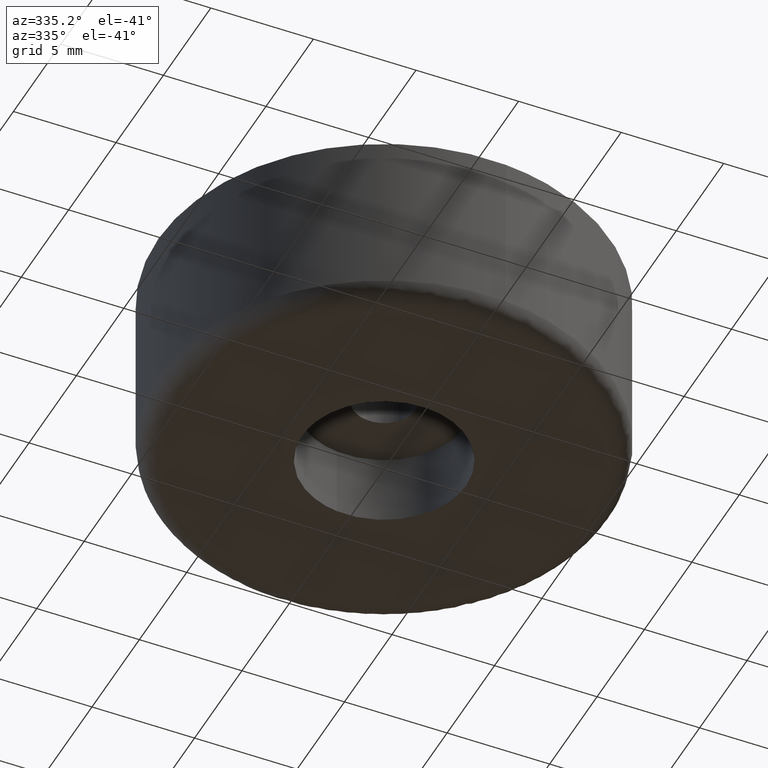
[diagram: clean part render]
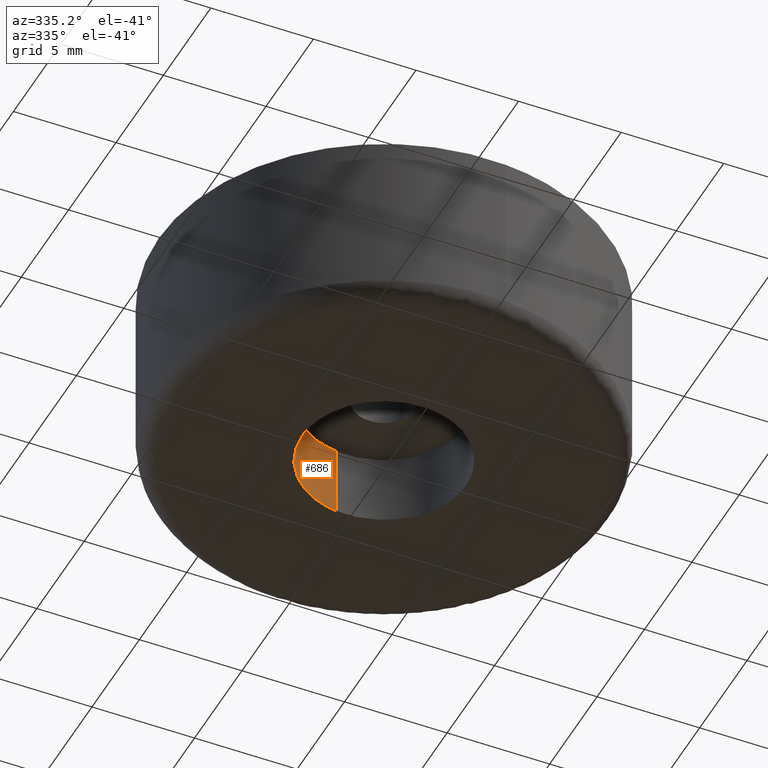
[diagram: same view with one face highlighted and labeled with its STEP entity id]
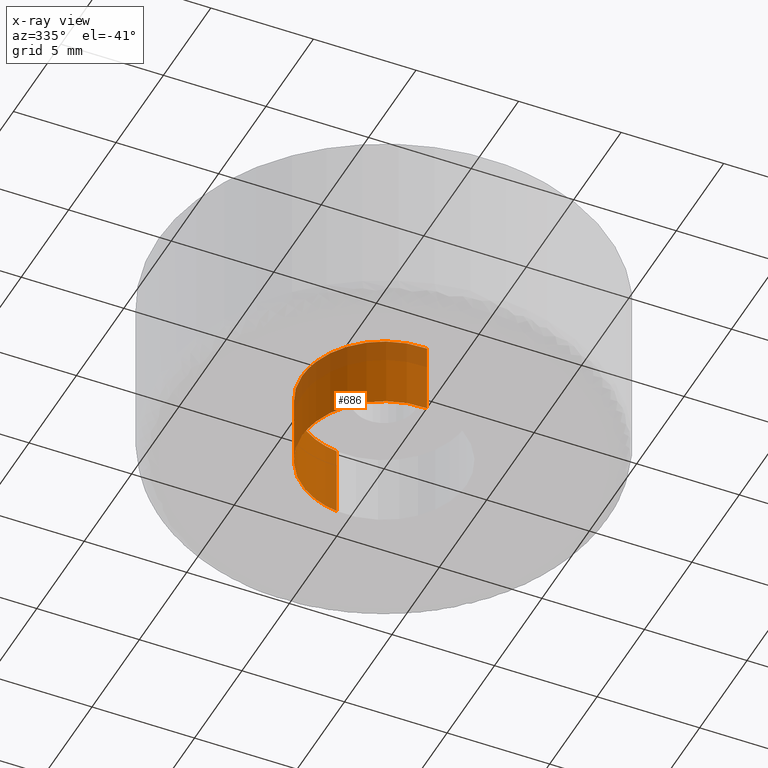
[diagram: x-ray of the same camera — body ghosted, the highlighted face saturated]
A machine part, auxiliary view. The second image highlights one B-rep face of the part: STEP entity #686.
The next image is the same camera in x-ray: the body ghosted, the highlighted face saturated — about 24% of this face is hidden behind the body in this view.
In plain terms, the highlighted face is a freeform B-spline surface patch.
Its self-contained STEP definition (entity closure, byte-faithful):
#523=CARTESIAN_POINT('',(-0.472135409144780,3.972038287256218,-7.780033E-015));
#524=VERTEX_POINT('',#523);
#542=CARTESIAN_POINT('',(0.244188269697965,-3.992539553831259,-5.921652E-014));
#543=VERTEX_POINT('',#542);
#557=CARTESIAN_POINT('',(0.244188342415201,-3.992539549383896,3.500000000000000));
#558=VERTEX_POINT('',#557);
#559=CARTESIAN_POINT('',(0.244188342415201,-3.992539549383896,3.500000000000000));
#560=CARTESIAN_POINT('',(0.244188269697965,-3.992539553831259,-5.921652E-014));
#561=QUASI_UNIFORM_CURVE('',1,(#559,#560),.UNSPECIFIED.,.F.,.U.);
#562=EDGE_CURVE('',#558,#543,#561,.T.);
#579=CARTESIAN_POINT('',(-0.472135428042880,3.972038285009908,3.500000000000000));
#580=VERTEX_POINT('',#579);
#596=CARTESIAN_POINT('',(-0.472135428042880,3.972038285009908,3.500000000000000));
#597=CARTESIAN_POINT('',(-0.472135409144780,3.972038287256218,-7.780033E-015));
#598=QUASI_UNIFORM_CURVE('',1,(#596,#597),.UNSPECIFIED.,.F.,.U.);
#599=EDGE_CURVE('',#580,#524,#598,.T.);
#604=CARTESIAN_POINT('',(0.244194158139428,-3.992539193687467,3.587500000000000));
#605=CARTESIAN_POINT('',(-3.748345035548039,-4.236733351826894,3.587500000000001));
#606=CARTESIAN_POINT('',(-3.992539193687467,-0.244194158139428,3.587500000000000));
#607=CARTESIAN_POINT('',(-4.223144786930110,3.526173963358004,3.587500000000000));
#608=CARTESIAN_POINT('',(-0.472136938627034,3.972038105454666,3.587500000000001));
#609=CARTESIAN_POINT('',(0.244194158139428,-3.992539193687467,-0.089687500000000));
#610=CARTESIAN_POINT('',(-3.748345035548039,-4.236733351826894,-0.089687500000000));
#611=CARTESIAN_POINT('',(-3.992539193687467,-0.244194158139428,-0.089687500000000));
#612=CARTESIAN_POINT('',(-4.223144786930110,3.526173963358004,-0.089687500000000));
#613=CARTESIAN_POINT('',(-0.472136938627034,3.972038105454666,-0.089687500000000));
#621=(BOUNDED_SURFACE()B_SPLINE_SURFACE(2,1,((#604,#609),(#605,#610),(#606,#611),(#607,#612),(#608,#613)),.UNSPECIFIED.,.F.,.F.,.U.)B_SPLINE_SURFACE_WITH_KNOTS((3,2,3),(2,2),(0.0,6.627416997969518,12.989737316020260),(0.0,3.677187500000001),.UNSPECIFIED.)GEOMETRIC_REPRESENTATION_ITEM()RATIONAL_B_SPLINE_SURFACE(((1.0,1.0),(0.707106781186548,0.707106781186548),(1.0,1.0),(0.718822509939086,0.718822509939086),(0.977505800795127,0.977505800795127)))REPRESENTATION_ITEM('')SURFACE());
#622=CARTESIAN_POINT('',(-4.0,0.0,0.0));
#623=VERTEX_POINT('',#622);
#624=CARTESIAN_POINT('',(-4.0,0.0,0.0));
#625=CARTESIAN_POINT('',(-4.0,3.552699481446219,0.0));
#626=CARTESIAN_POINT('',(-0.472135409144780,3.972038287256219,-7.780033E-015));
#634=(BOUNDED_CURVE()B_SPLINE_CURVE(2,(#624,#625,#626),.UNSPECIFIED.,.F.,.U.)B_SPLINE_CURVE_WITH_KNOTS((3,3),(0.0,0.229562538592431),.UNSPECIFIED.)CURVE()GEOMETRIC_REPRESENTATION_ITEM()RATIONAL_B_SPLINE_CURVE((1.0,0.731050756610702,0.956026881741091))REPRESENTATION_ITEM(''));
#635=EDGE_CURVE('',#623,#524,#634,.T.);
#636=ORIENTED_EDGE('',*,*,#635,.T.);
#637=ORIENTED_EDGE('',*,*,#599,.F.);
#638=CARTESIAN_POINT('',(-4.0,0.0,3.500000000000000));
#639=VERTEX_POINT('',#638);
#640=CARTESIAN_POINT('',(-4.0,0.0,3.500000000000000));
#641=CARTESIAN_POINT('',(-4.0,3.552699464424252,3.500000000000000));
#642=CARTESIAN_POINT('',(-0.472135428042880,3.972038285009907,3.500000000000000));
#650=(BOUNDED_CURVE()B_SPLINE_CURVE(2,(#640,#641,#642),.UNSPECIFIED.,.F.,.U.)B_SPLINE_CURVE_WITH_KNOTS((3,3),(0.0,0.229562537788350),.UNSPECIFIED.)CURVE()GEOMETRIC_REPRESENTATION_ITEM()RATIONAL_B_SPLINE_CURVE((1.0,0.731050757552741,0.956026880165058))REPRESENTATION_ITEM(''));
#651=EDGE_CURVE('',#639,#580,#650,.T.);
#652=ORIENTED_EDGE('',*,*,#651,.F.);
#653=CARTESIAN_POINT('',(0.244188342415201,-3.992539549383895,3.500000000000000));
#654=CARTESIAN_POINT('',(0.122208137179204,-4.000000000000001,3.500000000000000));
#655=CARTESIAN_POINT('',(0.0,-4.0,3.500000000000000));
#656=CARTESIAN_POINT('',(-4.000000000000000,-4.000000000000000,3.499999999999999));
#657=CARTESIAN_POINT('',(-4.0,0.0,3.500000000000000));
#665=(BOUNDED_CURVE()B_SPLINE_CURVE(2,(#653,#654,#655,#656,#657),.UNSPECIFIED.,.F.,.U.)B_SPLINE_CURVE_WITH_KNOTS((3,2,3),(0.739333213581951,0.750000000000000,1.0),.UNSPECIFIED.)CURVE()GEOMETRIC_REPRESENTATION_ITEM()RATIONAL_B_SPLINE_CURVE((0.976072580343222,0.987503082366489,1.0,0.707106781186548,1.0))REPRESENTATION_ITEM(''));
#666=EDGE_CURVE('',#558,#639,#665,.T.);
#667=ORIENTED_EDGE('',*,*,#666,.F.);
#668=ORIENTED_EDGE('',*,*,#562,.T.);
#669=CARTESIAN_POINT('',(0.244188269697965,-3.992539553831259,-5.921652E-014));
#670=CARTESIAN_POINT('',(0.122208100718648,-4.000000000000001,0.0));
#671=CARTESIAN_POINT('',(0.0,-4.0,0.0));
#672=CARTESIAN_POINT('',(-4.000000000000000,-4.000000000000000,0.0));
#673=CARTESIAN_POINT('',(-4.0,0.0,0.0));
#681=(BOUNDED_CURVE()B_SPLINE_CURVE(2,(#669,#670,#671,#672,#673),.UNSPECIFIED.,.F.,.U.)B_SPLINE_CURVE_WITH_KNOTS((3,2,3),(0.739333216724596,0.750000000000000,1.0),.UNSPECIFIED.)CURVE()GEOMETRIC_REPRESENTATION_ITEM()RATIONAL_B_SPLINE_CURVE((0.976072587078522,0.987503086048325,1.0,0.707106781186548,1.0))REPRESENTATION_ITEM(''));
#682=EDGE_CURVE('',#543,#623,#681,.T.);
#683=ORIENTED_EDGE('',*,*,#682,.T.);
#684=EDGE_LOOP('',(#636,#637,#652,#667,#668,#683));
#685=FACE_OUTER_BOUND('',#684,.T.);
#686=ADVANCED_FACE('',(#685),#621,.F.);